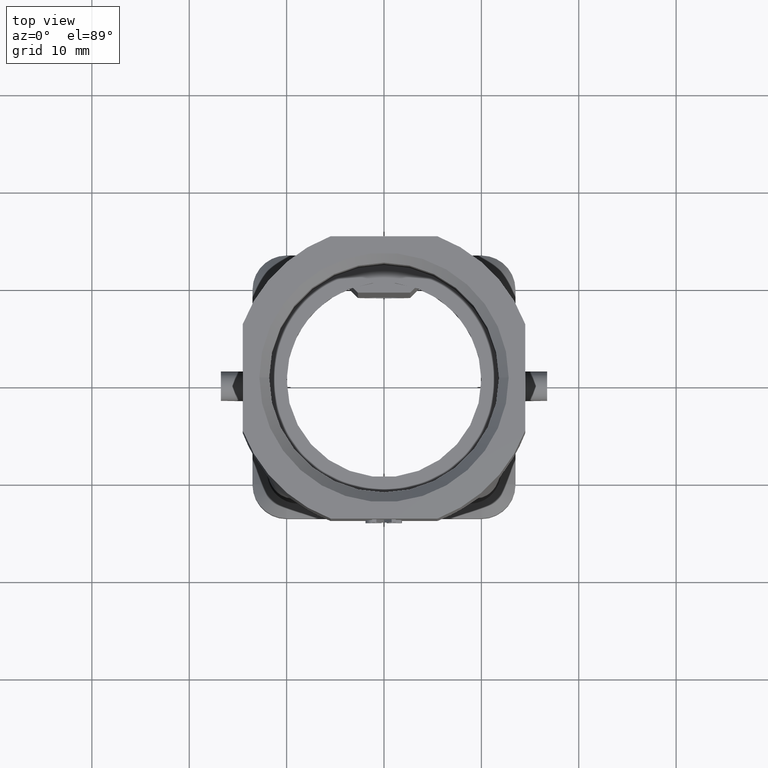
[diagram: clean part render]
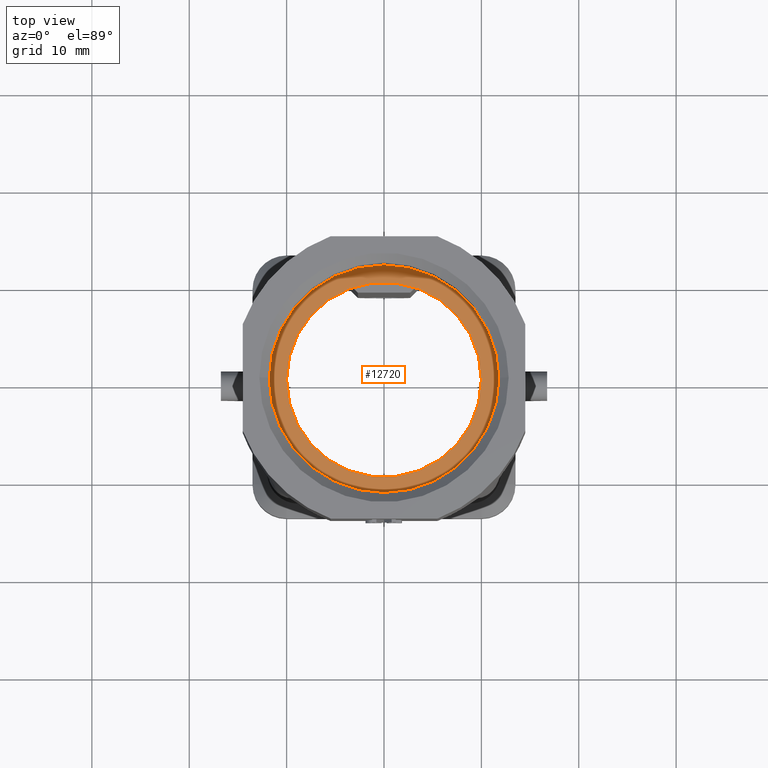
[diagram: same view with one face highlighted and labeled with its STEP entity id]
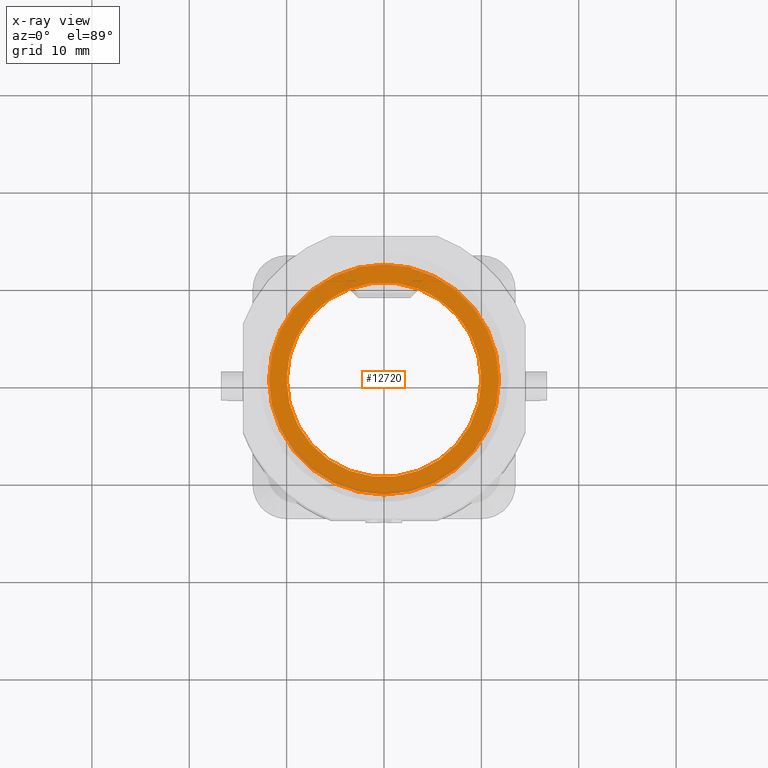
[diagram: x-ray of the same camera — body ghosted, the highlighted face saturated]
A machine part, top view. The second image highlights one B-rep face of the part: STEP entity #12720.
The next image is the same camera in x-ray: the body ghosted, the highlighted face saturated — about 4% of this face is hidden behind the body in this view.
In plain terms, the highlighted planar face has unit normal (0, 0, 1).
Its self-contained STEP definition (entity closure, byte-faithful):
#12090=CARTESIAN_POINT('',(54.265603,40.359071,43.));
#12100=VERTEX_POINT('',#12090);
#12260=CARTESIAN_POINT('',(30.665603,40.359071,43.));
#12270=VERTEX_POINT('',#12260);
#12300=CARTESIAN_POINT('',(42.465603,40.359071,43.));
#12310=DIRECTION('',(0.,0.,-1.));
#12320=DIRECTION('',(-1.,0.,0.));
#12330=AXIS2_PLACEMENT_3D('',#12300,#12310,#12320);
#12340=CIRCLE('',#12330,11.8);
#12350=EDGE_CURVE('',#12100,#12270,#12340,.T.);
#12470=CARTESIAN_POINT('',(30.215603,40.359071,43.));
#12480=DIRECTION('',(0.,0.,1.));
#12490=DIRECTION('',(-1.,0.,0.));
#12500=AXIS2_PLACEMENT_3D('',#12470,#12480,#12490);
#12510=PLANE('',#12500);
#12520=CARTESIAN_POINT('',(42.465603,40.359071,43.));
#12530=DIRECTION('',(0.,0.,1.));
#12540=DIRECTION('',(-1.,0.,0.));
#12550=AXIS2_PLACEMENT_3D('',#12520,#12530,#12540);
#12560=CIRCLE('',#12550,10.);
#12570=CARTESIAN_POINT('',(52.465603,40.359071,43.));
#12580=VERTEX_POINT('',#12570);
#12590=CARTESIAN_POINT('',(32.465603,40.359071,43.));
#12600=VERTEX_POINT('',#12590);
#12610=EDGE_CURVE('',#12580,#12600,#12560,.T.);
#12620=ORIENTED_EDGE('',*,*,#12610,.F.);
#12630=EDGE_CURVE('',#12600,#12580,#12560,.T.);
#12640=ORIENTED_EDGE('',*,*,#12630,.F.);
#12650=EDGE_LOOP('',(#12640,#12620));
#12660=FACE_BOUND('',#12650,.T.);
#12670=EDGE_CURVE('',#12270,#12100,#12340,.T.);
#12680=ORIENTED_EDGE('',*,*,#12670,.F.);
#12690=ORIENTED_EDGE('',*,*,#12350,.F.);
#12700=EDGE_LOOP('',(#12690,#12680));
#12710=FACE_OUTER_BOUND('',#12700,.T.);
#12720=ADVANCED_FACE('',(#12660,#12710),#12510,.T.);